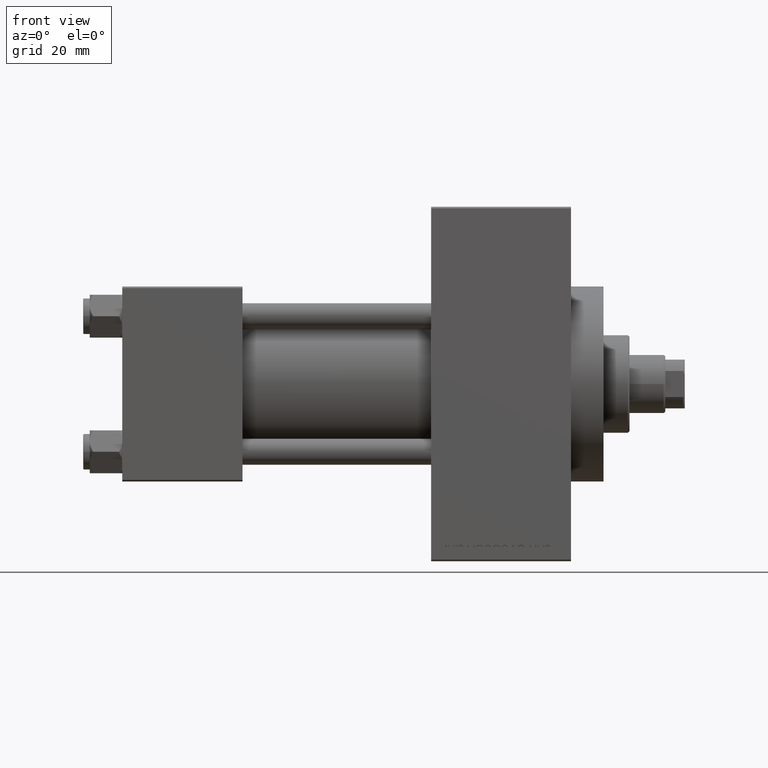
[diagram: clean part render]
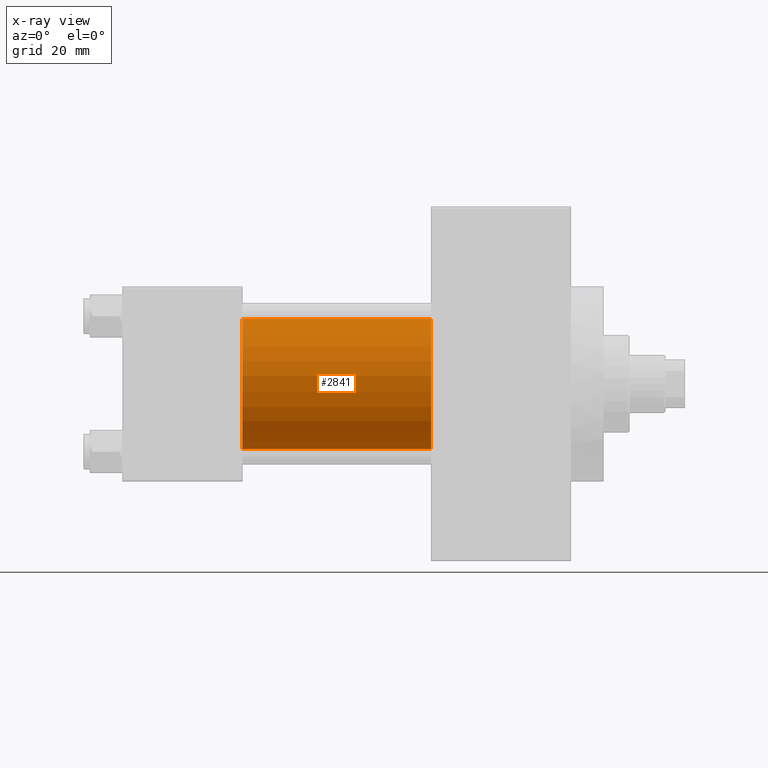
[diagram: x-ray — body ghosted, one internal face saturated and labeled with its STEP entity id]
A machine part, front view, then the same camera in x-ray: the body is ghosted and one INTERNAL B-rep face — a face not visible from any outside direction — is saturated and labeled: STEP entity #2841.
In plain terms, the highlighted cylindrical surface (partial cylindrical patch) has radius 20 mm, axis along (-1, -0, -0).
Its self-contained STEP definition (entity closure, byte-faithful):
#17 = DIRECTION ( 'NONE',  ( -1.000000000000000000, -0.000000000000000000, -0.000000000000000000 ) ) ;
#508 = CARTESIAN_POINT ( 'NONE',  ( 95.00000000000000000, -2.602085213965210642E-15, 0.000000000000000000 ) ) ;
#591 = EDGE_LOOP ( 'NONE', ( #712, #16963, #15171, #35368 ) ) ;
#712 = ORIENTED_EDGE ( 'NONE', *, *, #17244, .T. ) ;
#967 = AXIS2_PLACEMENT_3D ( 'NONE', #44709, #6880, #22653 ) ;
#1384 = AXIS2_PLACEMENT_3D ( 'NONE', #48286, #7177, #26231 ) ;
#2090 = DIRECTION ( 'NONE',  ( -1.000000000000000000, -0.000000000000000000, -0.000000000000000000 ) ) ;
#2168 = CIRCLE ( 'NONE', #1384, 20.00000000000000000 ) ;
#2841 = ADVANCED_FACE ( 'NONE', ( #9670 ), #24947, .F. ) ;
#3316 = CARTESIAN_POINT ( 'NONE',  ( 37.00000000000000000, -2.602085213965210642E-15, 20.00000000000000000 ) ) ;
#4223 = VERTEX_POINT ( 'NONE', #3316 ) ;
#6880 = DIRECTION ( 'NONE',  ( -1.000000000000000000, -0.000000000000000000, -0.000000000000000000 ) ) ;
#7177 = DIRECTION ( 'NONE',  ( 1.000000000000000000, 0.000000000000000000, 0.000000000000000000 ) ) ;
#9670 = FACE_OUTER_BOUND ( 'NONE', #591, .T. ) ;
#10076 = VERTEX_POINT ( 'NONE', #42871 ) ;
#11032 = LINE ( 'NONE', #34574, #44399 ) ;
#12648 = EDGE_CURVE ( 'NONE', #48449, #4223, #32878, .T. ) ;
#12928 = EDGE_CURVE ( 'NONE', #4223, #10076, #2168, .T. ) ;
#13388 = VECTOR ( 'NONE', #2090, 1000.000000000000000 ) ;
#15171 = ORIENTED_EDGE ( 'NONE', *, *, #12928, .F. ) ;
#15261 = DIRECTION ( 'NONE',  ( 1.000000000000000000, 0.000000000000000000, 0.000000000000000000 ) ) ;
#16716 = CIRCLE ( 'NONE', #32727, 20.00000000000000000 ) ;
#16721 = CARTESIAN_POINT ( 'NONE',  ( 95.00000000000000000, -2.602085213965210642E-15, 20.00000000000000000 ) ) ;
#16963 = ORIENTED_EDGE ( 'NONE', *, *, #37507, .T. ) ;
#17244 = EDGE_CURVE ( 'NONE', #48449, #34353, #16716, .T. ) ;
#22653 = DIRECTION ( 'NONE',  ( 0.000000000000000000, 0.000000000000000000, 1.000000000000000000 ) ) ;
#24947 = CYLINDRICAL_SURFACE ( 'NONE', #967, 20.00000000000000000 ) ;
#26231 = DIRECTION ( 'NONE',  ( 0.000000000000000000, 0.000000000000000000, -1.000000000000000000 ) ) ;
#32727 = AXIS2_PLACEMENT_3D ( 'NONE', #508, #15261, #46331 ) ;
#32878 = LINE ( 'NONE', #36399, #13388 ) ;
#34353 = VERTEX_POINT ( 'NONE', #37870 ) ;
#34574 = CARTESIAN_POINT ( 'NONE',  ( 95.00000000000000000, -1.527916156705046464E-16, -20.00000000000000000 ) ) ;
#35368 = ORIENTED_EDGE ( 'NONE', *, *, #12648, .F. ) ;
#36399 = CARTESIAN_POINT ( 'NONE',  ( 95.00000000000000000, -2.602085213965210642E-15, 20.00000000000000000 ) ) ;
#37507 = EDGE_CURVE ( 'NONE', #34353, #10076, #11032, .T. ) ;
#37870 = CARTESIAN_POINT ( 'NONE',  ( 95.00000000000000000, -1.527916156705046464E-16, -20.00000000000000000 ) ) ;
#42871 = CARTESIAN_POINT ( 'NONE',  ( 37.00000000000000000, -1.527916156705046464E-16, -20.00000000000000000 ) ) ;
#44399 = VECTOR ( 'NONE', #17, 1000.000000000000000 ) ;
#44709 = CARTESIAN_POINT ( 'NONE',  ( 95.00000000000000000, -2.602085213965210642E-15, 0.000000000000000000 ) ) ;
#46331 = DIRECTION ( 'NONE',  ( 0.000000000000000000, 0.000000000000000000, -1.000000000000000000 ) ) ;
#48286 = CARTESIAN_POINT ( 'NONE',  ( 37.00000000000000000, -2.602085213965210642E-15, 0.000000000000000000 ) ) ;
#48449 = VERTEX_POINT ( 'NONE', #16721 ) ;